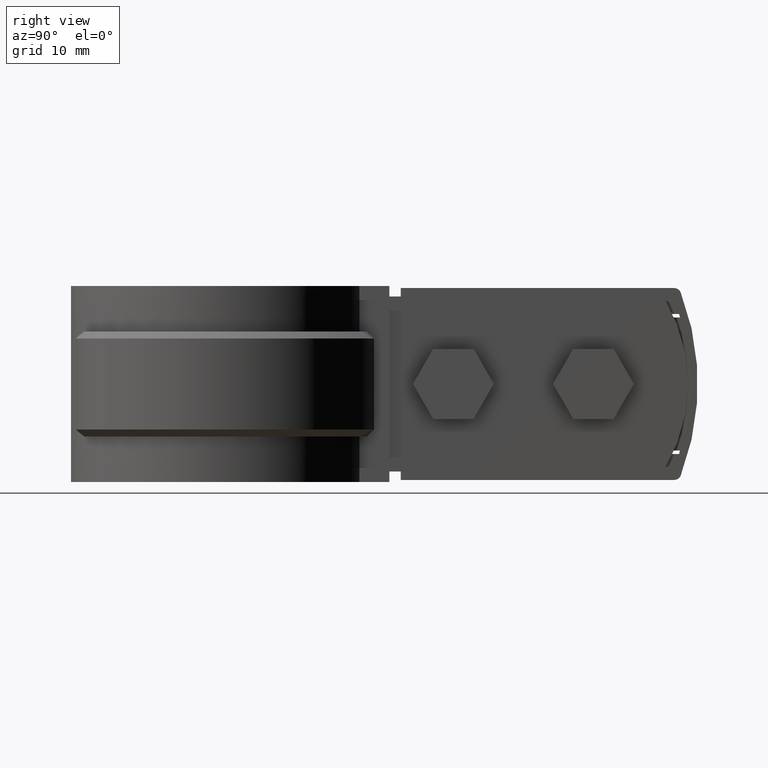
[diagram: clean part render]
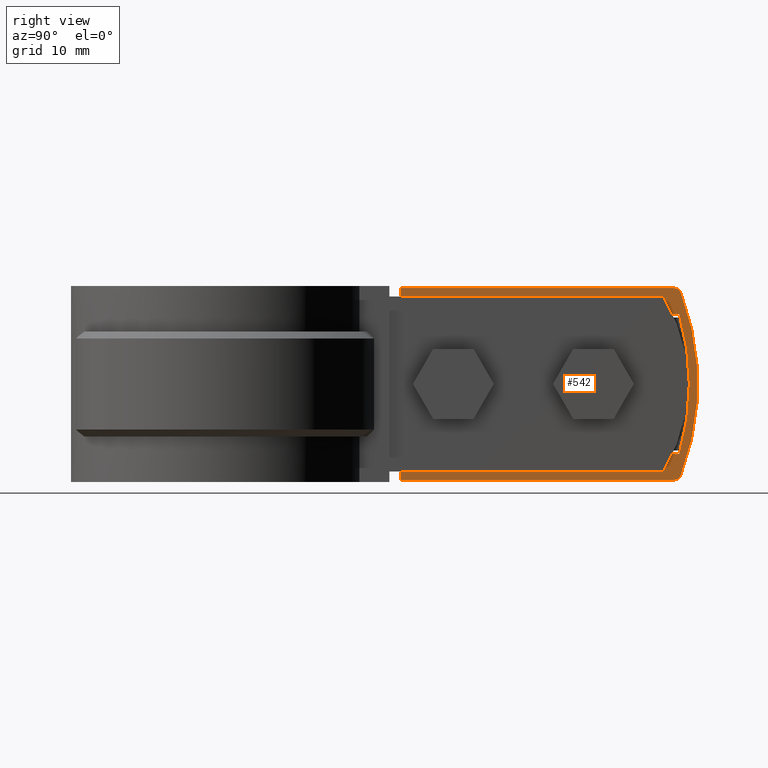
[diagram: same view with one face highlighted and labeled with its STEP entity id]
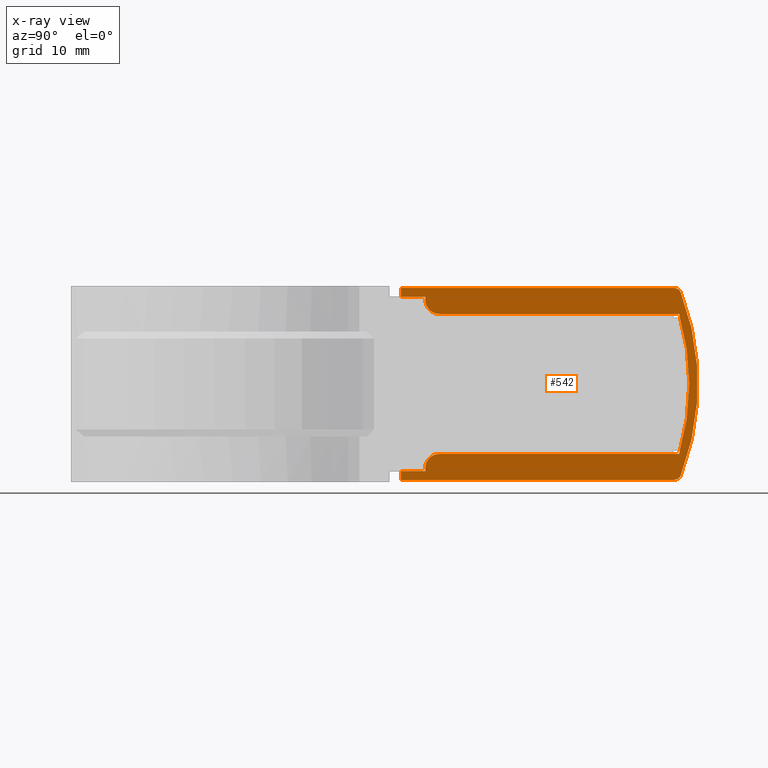
[diagram: x-ray of the same camera — body ghosted, the highlighted face saturated]
A machine part, right view. The second image highlights one B-rep face of the part: STEP entity #542.
The next image is the same camera in x-ray: the body ghosted, the highlighted face saturated — about 0% of this face is hidden behind the body in this view.
In plain terms, the highlighted planar face has unit normal (1, -0, -0).
Its self-contained STEP definition (entity closure, byte-faithful):
#542 = ADVANCED_FACE( '', ( #1097 ), #1098, .T. );
#1097 = FACE_OUTER_BOUND( '', #2353, .T. );
#1098 = PLANE( '', #2354 );
#2353 = EDGE_LOOP( '', ( #5395, #5396, #5397, #5398, #5399, #5400, #5401, #5402, #5403, #5404, #5405, #5406, #5407, #5408, #5409, #5410 ) );
#2354 = AXIS2_PLACEMENT_3D( '', #5411, #5412, #5413 );
#5395 = ORIENTED_EDGE( '', *, *, #7065, .T. );
#5396 = ORIENTED_EDGE( '', *, *, #7058, .T. );
#5397 = ORIENTED_EDGE( '', *, *, #7248, .F. );
#5398 = ORIENTED_EDGE( '', *, *, #7249, .F. );
#5399 = ORIENTED_EDGE( '', *, *, #7250, .F. );
#5400 = ORIENTED_EDGE( '', *, *, #7251, .T. );
#5401 = ORIENTED_EDGE( '', *, *, #7252, .T. );
#5402 = ORIENTED_EDGE( '', *, *, #7253, .T. );
#5403 = ORIENTED_EDGE( '', *, *, #7254, .T. );
#5404 = ORIENTED_EDGE( '', *, *, #7255, .F. );
#5405 = ORIENTED_EDGE( '', *, *, #7256, .T. );
#5406 = ORIENTED_EDGE( '', *, *, #7257, .T. );
#5407 = ORIENTED_EDGE( '', *, *, #7258, .T. );
#5408 = ORIENTED_EDGE( '', *, *, #7259, .T. );
#5409 = ORIENTED_EDGE( '', *, *, #7260, .T. );
#5410 = ORIENTED_EDGE( '', *, *, #7261, .T. );
#5411 = CARTESIAN_POINT( '', ( -3.50000000000002, 32.1043584449257, -12.4999999999987 ) );
#5412 = DIRECTION( '', ( 1.00000000000000, -7.11644238881419E-017, -4.90916367508846E-064 ) );
#5413 = DIRECTION( '', ( -1.34940133673351E-079, -6.89833965747382E-048, 1.00000000000000 ) );
#7058 = EDGE_CURVE( '', #8332, #8330, #8333, .T. );
#7065 = EDGE_CURVE( '', #8342, #8332, #8343, .T. );
#7248 = EDGE_CURVE( '', #8646, #8330, #8647, .T. );
#7249 = EDGE_CURVE( '', #8648, #8646, #8649, .T. );
#7250 = EDGE_CURVE( '', #8650, #8648, #8651, .T. );
#7251 = EDGE_CURVE( '', #8650, #8652, #8653, .T. );
#7252 = EDGE_CURVE( '', #8652, #8654, #8655, .T. );
#7253 = EDGE_CURVE( '', #8654, #8656, #8657, .T. );
#7254 = EDGE_CURVE( '', #8656, #8658, #8659, .T. );
#7255 = EDGE_CURVE( '', #8660, #8658, #8661, .T. );
#7256 = EDGE_CURVE( '', #8660, #8662, #8663, .T. );
#7257 = EDGE_CURVE( '', #8662, #8664, #8665, .T. );
#7258 = EDGE_CURVE( '', #8664, #8666, #8667, .T. );
#7259 = EDGE_CURVE( '', #8666, #8668, #8669, .T. );
#7260 = EDGE_CURVE( '', #8668, #8670, #8671, .T. );
#7261 = EDGE_CURVE( '', #8670, #8342, #8672, .T. );
#8330 = VERTEX_POINT( '', #11610 );
#8332 = VERTEX_POINT( '', #11613 );
#8333 = CIRCLE( '', #11614, 35.2000000000000 );
#8342 = VERTEX_POINT( '', #11628 );
#8343 = LINE( '', #11629, #11630 );
#8646 = VERTEX_POINT( '', #12081 );
#8647 = LINE( '', #12082, #12083 );
#8648 = VERTEX_POINT( '', #12084 );
#8649 = CIRCLE( '', #12085, 2.00000000000000 );
#8650 = VERTEX_POINT( '', #12086 );
#8651 = LINE( '', #12087, #12088 );
#8652 = VERTEX_POINT( '', #12089 );
#8653 = LINE( '', #12090, #12091 );
#8654 = VERTEX_POINT( '', #12092 );
#8655 = LINE( '', #12093, #12094 );
#8656 = VERTEX_POINT( '', #12095 );
#8657 = LINE( '', #12096, #12097 );
#8658 = VERTEX_POINT( '', #12098 );
#8659 = CIRCLE( '', #12099, 1.00000000000000 );
#8660 = VERTEX_POINT( '', #12100 );
#8661 = CIRCLE( '', #12101, 36.4000000000000 );
#8662 = VERTEX_POINT( '', #12102 );
#8663 = CIRCLE( '', #12103, 1.00000000000000 );
#8664 = VERTEX_POINT( '', #12104 );
#8665 = LINE( '', #12105, #12106 );
#8666 = VERTEX_POINT( '', #12107 );
#8667 = LINE( '', #12108, #12109 );
#8668 = VERTEX_POINT( '', #12110 );
#8669 = LINE( '', #12111, #12112 );
#8670 = VERTEX_POINT( '', #12113 );
#8671 = LINE( '', #12114, #12115 );
#8672 = CIRCLE( '', #12116, 2.00000000000000 );
#11610 = CARTESIAN_POINT( '', ( -3.50000000000002, 65.8540251099462, -22.4999999999987 ) );
#11613 = CARTESIAN_POINT( '', ( -3.50000000000002, 65.8540251099462, -2.49999999999871 ) );
#11614 = AXIS2_PLACEMENT_3D( '', #13312, #13313, #13314 );
#11628 = CARTESIAN_POINT( '', ( -3.50000000000002, 31.6043584449257, -2.49999999999872 ) );
#11629 = CARTESIAN_POINT( '', ( -3.50000000000002, 31.6043584449257, -2.49999999999871 ) );
#11630 = VECTOR( '', #13323, 1000.00000000000 );
#12081 = CARTESIAN_POINT( '', ( -3.50000000000002, 31.6043584449257, -22.4999999999987 ) );
#12082 = CARTESIAN_POINT( '', ( -3.50000000000002, 31.6043584449257, -22.4999999999987 ) );
#12083 = VECTOR( '', #13574, 1000.00000000000 );
#12084 = CARTESIAN_POINT( '', ( -3.50000000000002, 29.6043584449257, -24.4999999999987 ) );
#12085 = AXIS2_PLACEMENT_3D( '', #13575, #13576, #13577 );
#12086 = CARTESIAN_POINT( '', ( -3.50000000000002, 29.6043584449257, -24.9999999999987 ) );
#12087 = CARTESIAN_POINT( '', ( -3.50000000000002, 29.6043584449257, -24.9999999999987 ) );
#12088 = VECTOR( '', #13578, 1000.00000000000 );
#12089 = CARTESIAN_POINT( '', ( -3.50000000000002, 26.1043584449257, -24.9999999999987 ) );
#12090 = CARTESIAN_POINT( '', ( -3.50000000000002, 64.7961005214808, -24.9999999999987 ) );
#12091 = VECTOR( '', #13579, 1000.00000000000 );
#12092 = CARTESIAN_POINT( '', ( -3.50000000000002, 26.1043584449257, -26.1999999999987 ) );
#12093 = CARTESIAN_POINT( '', ( -3.50000000000002, 26.1043584449257, -24.9999999999987 ) );
#12094 = VECTOR( '', #13580, 1000.00000000000 );
#12095 = CARTESIAN_POINT( '', ( -3.50000000000002, 65.1478146806163, -26.1999999999987 ) );
#12096 = CARTESIAN_POINT( '', ( -3.50000000000002, 26.1043584449257, -26.1999999999987 ) );
#12097 = VECTOR( '', #13581, 1000.00000000000 );
#12098 = CARTESIAN_POINT( '', ( -3.50000000000002, 66.0812456477262, -25.5587570621456 ) );
#12099 = AXIS2_PLACEMENT_3D( '', #13582, #13583, #13584 );
#12100 = CARTESIAN_POINT( '', ( -3.50000000000002, 66.0812456477262, 0.558757062148177 ) );
#12101 = AXIS2_PLACEMENT_3D( '', #13585, #13586, #13587 );
#12102 = CARTESIAN_POINT( '', ( -3.50000000000002, 65.1478146806163, 1.20000000000129 ) );
#12103 = AXIS2_PLACEMENT_3D( '', #13588, #13589, #13590 );
#12104 = CARTESIAN_POINT( '', ( -3.50000000000002, 26.1043584449257, 1.20000000000129 ) );
#12105 = CARTESIAN_POINT( '', ( -3.50000000000002, 65.3956485971562, 1.20000000000129 ) );
#12106 = VECTOR( '', #13591, 1000.00000000000 );
#12107 = CARTESIAN_POINT( '', ( -3.50000000000002, 26.1043584449257, 1.28859441268000E-012 ) );
#12108 = CARTESIAN_POINT( '', ( -3.50000000000002, 26.1043584449257, 1.20000000000129 ) );
#12109 = VECTOR( '', #13592, 1000.00000000000 );
#12110 = CARTESIAN_POINT( '', ( -3.50000000000002, 29.6043584449257, 1.28163712044642E-012 ) );
#12111 = CARTESIAN_POINT( '', ( -3.50000000000002, 26.1043584449257, 1.29206385963195E-012 ) );
#12112 = VECTOR( '', #13593, 1000.00000000000 );
#12113 = CARTESIAN_POINT( '', ( -3.50000000000002, 29.6043584449257, -0.499999999998709 ) );
#12114 = CARTESIAN_POINT( '', ( -3.50000000000002, 29.6043584449257, 1.28163712044642E-012 ) );
#12115 = VECTOR( '', #13594, 1000.00000000000 );
#12116 = AXIS2_PLACEMENT_3D( '', #13595, #13596, #13597 );
#13312 = CARTESIAN_POINT( '', ( -3.50000000000002, 32.1043584449257, -12.4999999999987 ) );
#13313 = DIRECTION( '', ( -1.00000000000000, 5.43749172031714E-017, -4.74549138297015E-031 ) );
#13314 = DIRECTION( '', ( -4.80585966801120E-031, -1.11022302462516E-016, 1.00000000000000 ) );
#13323 = DIRECTION( '', ( 5.56970201441962E-017, 1.00000000000000, 1.27307474615306E-016 ) );
#13574 = DIRECTION( '', ( 5.56970201441962E-017, 1.00000000000000, 1.27307474615306E-016 ) );
#13575 = CARTESIAN_POINT( '', ( -3.50000000000002, 31.6043584449257, -24.4999999999987 ) );
#13576 = DIRECTION( '', ( -1.00000000000000, 5.23306363765287E-017, -1.83983296778191E-017 ) );
#13577 = DIRECTION( '', ( -5.23306363765287E-017, -1.00000000000000, 1.16698518397363E-016 ) );
#13578 = DIRECTION( '', ( 0.000000000000000, 1.16698518397363E-016, 1.00000000000000 ) );
#13579 = DIRECTION( '', ( -5.56970201441962E-017, -1.00000000000000, -5.55111512312578E-017 ) );
#13580 = DIRECTION( '', ( -3.08148791101958E-033, -1.11022302462516E-016, -1.00000000000000 ) );
#13581 = DIRECTION( '', ( 5.56970201441962E-017, 1.00000000000000, 5.55111512312578E-017 ) );
#13582 = CARTESIAN_POINT( '', ( -3.50000000000002, 65.1478146806163, -25.1999999999987 ) );
#13583 = DIRECTION( '', ( 1.00000000000000, -7.11644238881419E-017, -9.55261252416069E-032 ) );
#13584 = DIRECTION( '', ( 7.11644238881419E-017, 1.00000000000000, -1.17745040047421E-063 ) );
#13585 = CARTESIAN_POINT( '', ( -3.50000000000002, 32.1043584449257, -12.4999999999987 ) );
#13586 = DIRECTION( '', ( -1.00000000000000, 8.63850640449354E-017, 6.32865840457794E-019 ) );
#13587 = DIRECTION( '', ( 6.32865840457775E-019, -2.22044604925031E-016, 1.00000000000000 ) );
#13588 = CARTESIAN_POINT( '', ( -3.50000000000002, 65.1478146806163, 0.200000000001288 ) );
#13589 = DIRECTION( '', ( 1.00000000000000, -7.11644238881419E-017, -9.55261252416069E-032 ) );
#13590 = DIRECTION( '', ( 7.11644238881419E-017, 1.00000000000000, -1.17745040047421E-063 ) );
#13591 = DIRECTION( '', ( -5.56970201441962E-017, -1.00000000000000, -5.55111512312578E-017 ) );
#13592 = DIRECTION( '', ( -3.08148791101958E-033, -1.11022302462516E-016, -1.00000000000000 ) );
#13593 = DIRECTION( '', ( 5.56970201441962E-017, 1.00000000000000, 5.55111512312578E-017 ) );
#13594 = DIRECTION( '', ( 3.08148791101958E-033, -1.16698518397363E-016, -1.00000000000000 ) );
#13595 = CARTESIAN_POINT( '', ( -3.50000000000002, 31.6043584449257, -0.499999999998714 ) );
#13596 = DIRECTION( '', ( 1.00000000000000, -5.23306363765287E-017, -1.83983296778191E-017 ) );
#13597 = DIRECTION( '', ( -5.23306363765287E-017, -1.00000000000000, 2.25118735645914E-016 ) );